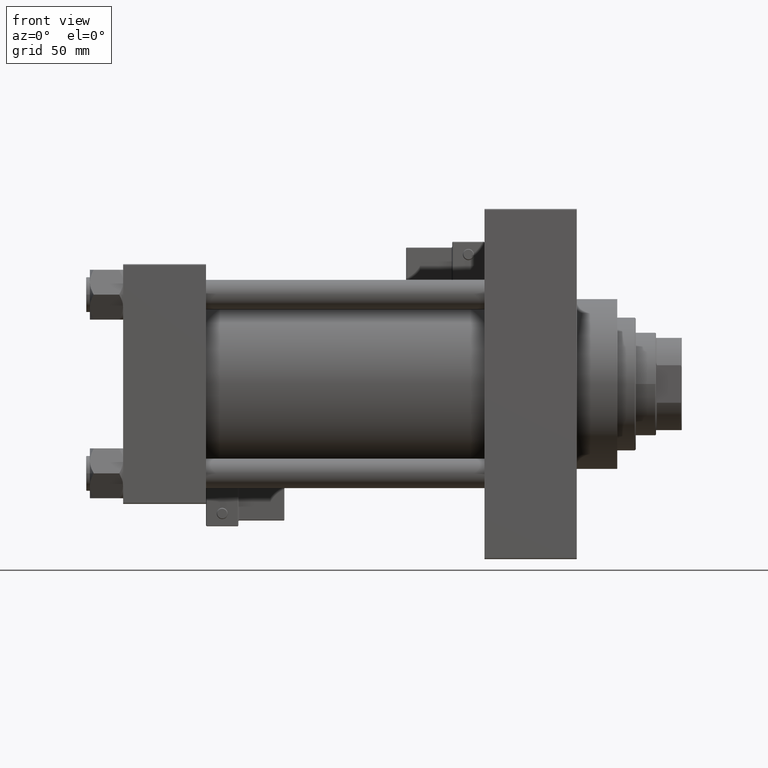
[diagram: clean part render]
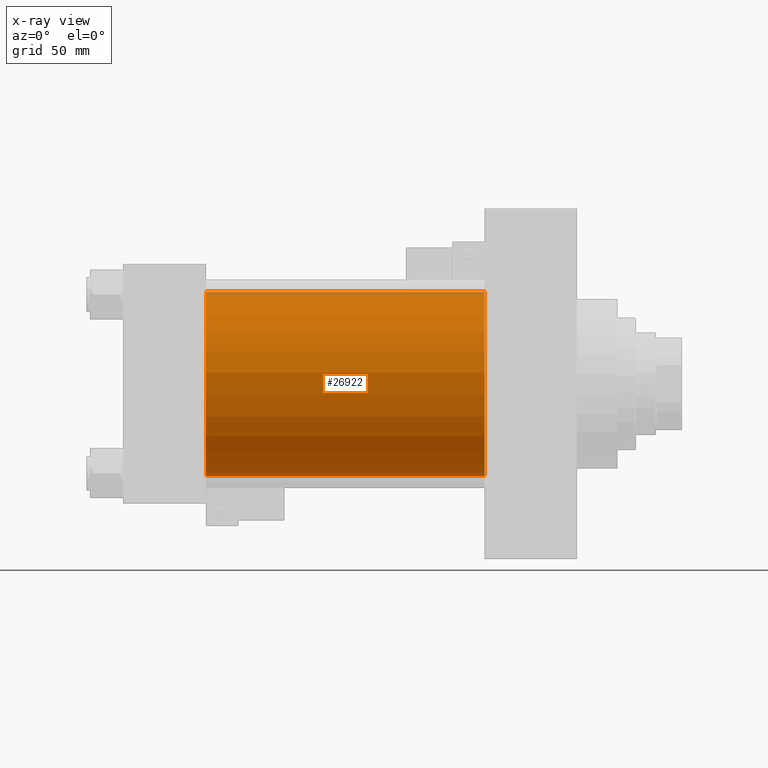
[diagram: x-ray — body ghosted, one internal face saturated and labeled with its STEP entity id]
A machine part, front view, then the same camera in x-ray: the body is ghosted and one INTERNAL B-rep face — a face not visible from any outside direction — is saturated and labeled: STEP entity #26922.
In plain terms, the highlighted cylindrical surface (partial cylindrical patch) has radius 50 mm, axis along (-1, -0, -0).
Its self-contained STEP definition (entity closure, byte-faithful):
#1888 = FACE_OUTER_BOUND ( 'NONE', #8464, .T. ) ;
#2238 = CARTESIAN_POINT ( 'NONE',  ( 45.00000000000000000, 3.521148781771555838E-15, -50.00000000000000000 ) ) ;
#4765 = ORIENTED_EDGE ( 'NONE', *, *, #25204, .T. ) ;
#5010 = CARTESIAN_POINT ( 'NONE',  ( 196.0000000000000000, -2.602085213965210642E-15, 50.00000000000000000 ) ) ;
#6231 = DIRECTION ( 'NONE',  ( -1.000000000000000000, -0.000000000000000000, -0.000000000000000000 ) ) ;
#8464 = EDGE_LOOP ( 'NONE', ( #4765, #19701, #48540, #29530 ) ) ;
#8597 = AXIS2_PLACEMENT_3D ( 'NONE', #34074, #38383, #29752 ) ;
#9276 = VERTEX_POINT ( 'NONE', #14947 ) ;
#10139 = CARTESIAN_POINT ( 'NONE',  ( 45.00000000000000000, -2.602085213965210642E-15, 0.000000000000000000 ) ) ;
#13386 = EDGE_CURVE ( 'NONE', #24306, #44677, #26014, .T. ) ;
#14947 = CARTESIAN_POINT ( 'NONE',  ( 196.0000000000000000, -2.602085213965210642E-15, 50.00000000000000000 ) ) ;
#17710 = CIRCLE ( 'NONE', #40386, 50.00000000000000000 ) ;
#18342 = VECTOR ( 'NONE', #6231, 1000.000000000000000 ) ;
#19701 = ORIENTED_EDGE ( 'NONE', *, *, #13386, .T. ) ;
#19755 = DIRECTION ( 'NONE',  ( 1.000000000000000000, 0.000000000000000000, 0.000000000000000000 ) ) ;
#19831 = CARTESIAN_POINT ( 'NONE',  ( 45.00000000000000000, -2.602085213965210642E-15, 50.00000000000000000 ) ) ;
#20112 = VERTEX_POINT ( 'NONE', #19831 ) ;
#21916 = CYLINDRICAL_SURFACE ( 'NONE', #8597, 50.00000000000000000 ) ;
#23779 = DIRECTION ( 'NONE',  ( -1.000000000000000000, -0.000000000000000000, -0.000000000000000000 ) ) ;
#24306 = VERTEX_POINT ( 'NONE', #41598 ) ;
#25204 = EDGE_CURVE ( 'NONE', #9276, #24306, #44136, .T. ) ;
#25510 = CARTESIAN_POINT ( 'NONE',  ( 196.0000000000000000, 3.521148781771555838E-15, -50.00000000000000000 ) ) ;
#26014 = LINE ( 'NONE', #25510, #18342 ) ;
#26922 = ADVANCED_FACE ( 'NONE', ( #1888 ), #21916, .F. ) ;
#27124 = AXIS2_PLACEMENT_3D ( 'NONE', #28372, #19755, #27619 ) ;
#27619 = DIRECTION ( 'NONE',  ( 0.000000000000000000, 0.000000000000000000, -1.000000000000000000 ) ) ;
#28372 = CARTESIAN_POINT ( 'NONE',  ( 196.0000000000000000, -2.602085213965210642E-15, 0.000000000000000000 ) ) ;
#29530 = ORIENTED_EDGE ( 'NONE', *, *, #38958, .F. ) ;
#29752 = DIRECTION ( 'NONE',  ( 0.000000000000000000, 0.000000000000000000, 1.000000000000000000 ) ) ;
#33462 = DIRECTION ( 'NONE',  ( 1.000000000000000000, 0.000000000000000000, 0.000000000000000000 ) ) ;
#34074 = CARTESIAN_POINT ( 'NONE',  ( 196.0000000000000000, -2.602085213965210642E-15, 0.000000000000000000 ) ) ;
#35185 = LINE ( 'NONE', #5010, #42895 ) ;
#38383 = DIRECTION ( 'NONE',  ( -1.000000000000000000, -0.000000000000000000, -0.000000000000000000 ) ) ;
#38958 = EDGE_CURVE ( 'NONE', #9276, #20112, #35185, .T. ) ;
#40386 = AXIS2_PLACEMENT_3D ( 'NONE', #10139, #33462, #48949 ) ;
#41598 = CARTESIAN_POINT ( 'NONE',  ( 196.0000000000000000, 3.521148781771555838E-15, -50.00000000000000000 ) ) ;
#42895 = VECTOR ( 'NONE', #23779, 1000.000000000000000 ) ;
#44136 = CIRCLE ( 'NONE', #27124, 50.00000000000000000 ) ;
#44677 = VERTEX_POINT ( 'NONE', #2238 ) ;
#47363 = EDGE_CURVE ( 'NONE', #20112, #44677, #17710, .T. ) ;
#48540 = ORIENTED_EDGE ( 'NONE', *, *, #47363, .F. ) ;
#48949 = DIRECTION ( 'NONE',  ( 0.000000000000000000, 0.000000000000000000, -1.000000000000000000 ) ) ;